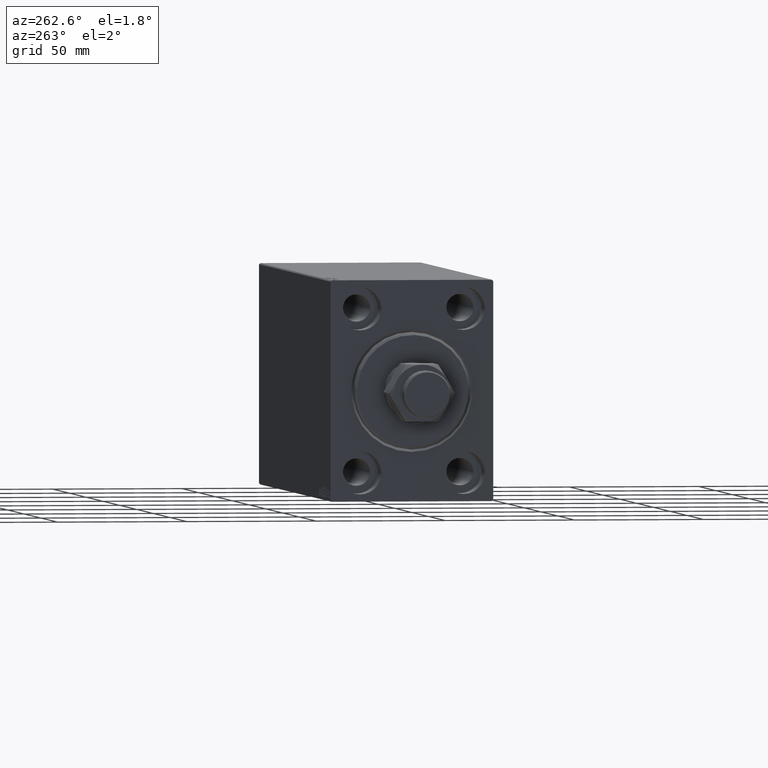
[diagram: clean part render]
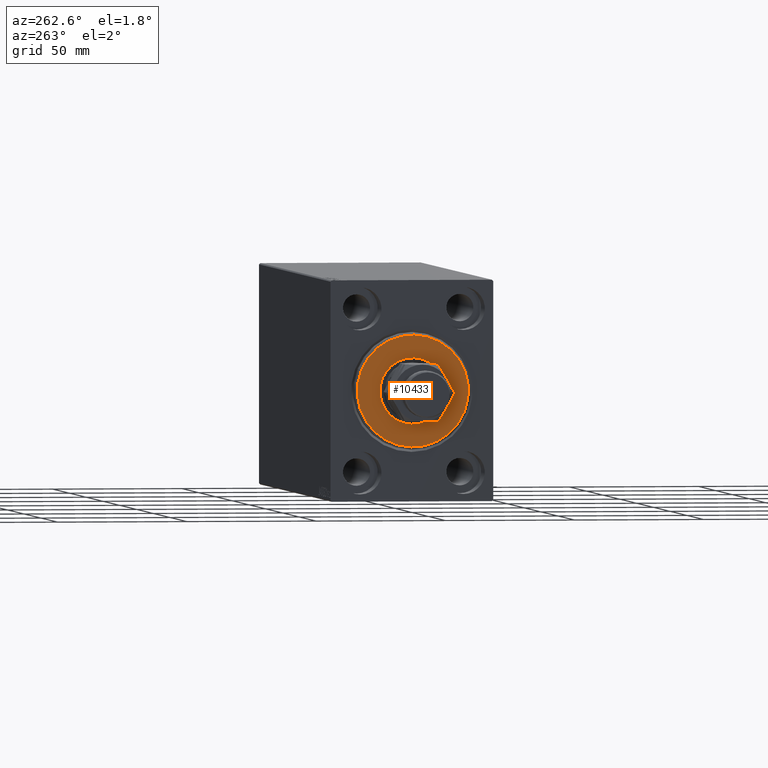
[diagram: same view with one face highlighted and labeled with its STEP entity id]
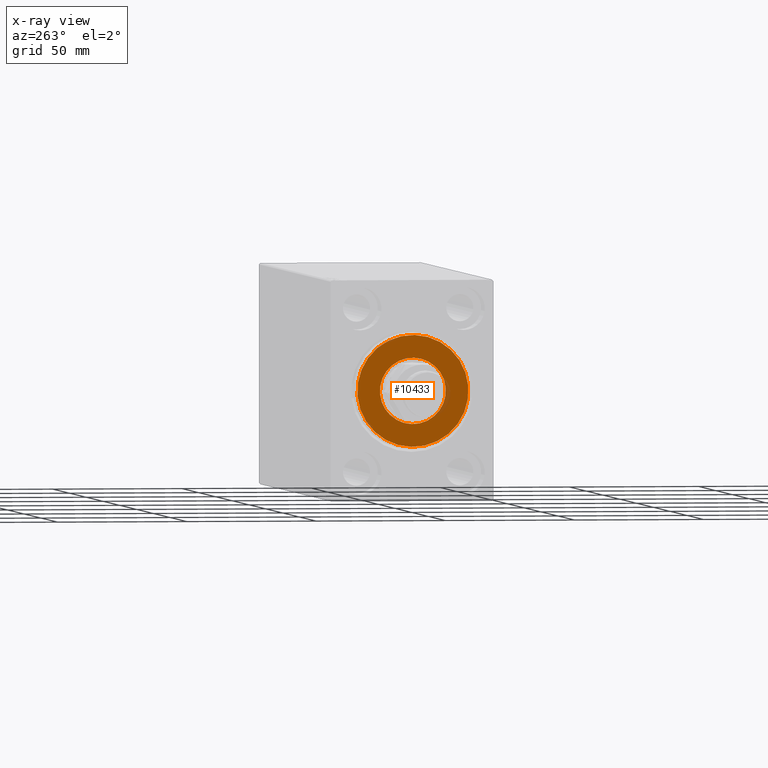
[diagram: x-ray of the same camera — body ghosted, the highlighted face saturated]
A machine part, auxiliary view. The second image highlights one B-rep face of the part: STEP entity #10433.
The next image is the same camera in x-ray: the body ghosted, the highlighted face saturated — about 3% of this face is hidden behind the body in this view.
In plain terms, the highlighted planar face has unit normal (-1, 0, 0).
Its self-contained STEP definition (entity closure, byte-faithful):
#1631 = AXIS2_PLACEMENT_3D ( 'NONE', #26582, #33684, #6383 ) ;
#1928 = CIRCLE ( 'NONE', #7080, 12.75000000000000000 ) ;
#6383 = DIRECTION ( 'NONE',  ( 0.000000000000000000, 0.000000000000000000, -1.000000000000000000 ) ) ;
#7080 = AXIS2_PLACEMENT_3D ( 'NONE', #30969, #44975, #10098 ) ;
#7386 = VERTEX_POINT ( 'NONE', #38170 ) ;
#7443 = ORIENTED_EDGE ( 'NONE', *, *, #40751, .T. ) ;
#7677 = CARTESIAN_POINT ( 'NONE',  ( 3.000000000000000000, 0.000000000000000000, 0.000000000000000000 ) ) ;
#8374 = DIRECTION ( 'NONE',  ( 0.000000000000000000, 0.000000000000000000, -1.000000000000000000 ) ) ;
#10098 = DIRECTION ( 'NONE',  ( 0.000000000000000000, 0.000000000000000000, -1.000000000000000000 ) ) ;
#10433 = ADVANCED_FACE ( 'NONE', ( #32438, #29228 ), #36562, .T. ) ;
#11193 = VERTEX_POINT ( 'NONE', #25913 ) ;
#13111 = ORIENTED_EDGE ( 'NONE', *, *, #24218, .T. ) ;
#13224 = DIRECTION ( 'NONE',  ( 0.000000000000000000, 0.000000000000000000, -1.000000000000000000 ) ) ;
#14415 = EDGE_CURVE ( 'NONE', #25025, #11193, #42424, .T. ) ;
#16683 = ORIENTED_EDGE ( 'NONE', *, *, #14415, .T. ) ;
#18916 = CARTESIAN_POINT ( 'NONE',  ( 3.000000000000000000, 0.000000000000000000, 0.000000000000000000 ) ) ;
#19642 = CIRCLE ( 'NONE', #20350, 12.75000000000000000 ) ;
#20350 = AXIS2_PLACEMENT_3D ( 'NONE', #44648, #34291, #13224 ) ;
#22117 = DIRECTION ( 'NONE',  ( 1.000000000000000000, -0.000000000000000000, 0.000000000000000000 ) ) ;
#24218 = EDGE_CURVE ( 'NONE', #11193, #25025, #44885, .T. ) ;
#25025 = VERTEX_POINT ( 'NONE', #32325 ) ;
#25065 = EDGE_LOOP ( 'NONE', ( #16683, #13111 ) ) ;
#25913 = CARTESIAN_POINT ( 'NONE',  ( 3.000000000000000000, 2.694222958124177598E-15, -21.50000000000000355 ) ) ;
#26582 = CARTESIAN_POINT ( 'NONE',  ( 3.000000000000000000, 0.000000000000000000, 0.000000000000000000 ) ) ;
#28923 = ORIENTED_EDGE ( 'NONE', *, *, #42289, .T. ) ;
#29228 = FACE_BOUND ( 'NONE', #30905, .T. ) ;
#29614 = CARTESIAN_POINT ( 'NONE',  ( 3.000000000000000000, 0.000000000000000000, 12.75000000000000000 ) ) ;
#30675 = AXIS2_PLACEMENT_3D ( 'NONE', #7677, #22117, #40010 ) ;
#30905 = EDGE_LOOP ( 'NONE', ( #7443, #28923 ) ) ;
#30969 = CARTESIAN_POINT ( 'NONE',  ( 3.000000000000000000, 0.000000000000000000, 0.000000000000000000 ) ) ;
#30978 = VERTEX_POINT ( 'NONE', #29614 ) ;
#32134 = AXIS2_PLACEMENT_3D ( 'NONE', #18916, #39790, #8374 ) ;
#32325 = CARTESIAN_POINT ( 'NONE',  ( 3.000000000000000000, 0.000000000000000000, 21.50000000000000355 ) ) ;
#32438 = FACE_OUTER_BOUND ( 'NONE', #25065, .T. ) ;
#33684 = DIRECTION ( 'NONE',  ( 1.000000000000000000, -0.000000000000000000, 0.000000000000000000 ) ) ;
#34291 = DIRECTION ( 'NONE',  ( -1.000000000000000000, 0.000000000000000000, -0.000000000000000000 ) ) ;
#36562 = PLANE ( 'NONE',  #30675 ) ;
#38170 = CARTESIAN_POINT ( 'NONE',  ( 3.000000000000000000, 1.561424668912874914E-15, -12.75000000000000000 ) ) ;
#39790 = DIRECTION ( 'NONE',  ( 1.000000000000000000, -0.000000000000000000, 0.000000000000000000 ) ) ;
#40010 = DIRECTION ( 'NONE',  ( 0.000000000000000000, 0.000000000000000000, -1.000000000000000000 ) ) ;
#40751 = EDGE_CURVE ( 'NONE', #30978, #7386, #1928, .T. ) ;
#42289 = EDGE_CURVE ( 'NONE', #7386, #30978, #19642, .T. ) ;
#42424 = CIRCLE ( 'NONE', #32134, 21.50000000000000355 ) ;
#44648 = CARTESIAN_POINT ( 'NONE',  ( 3.000000000000000000, 0.000000000000000000, 0.000000000000000000 ) ) ;
#44885 = CIRCLE ( 'NONE', #1631, 21.50000000000000355 ) ;
#44975 = DIRECTION ( 'NONE',  ( -1.000000000000000000, 0.000000000000000000, -0.000000000000000000 ) ) ;